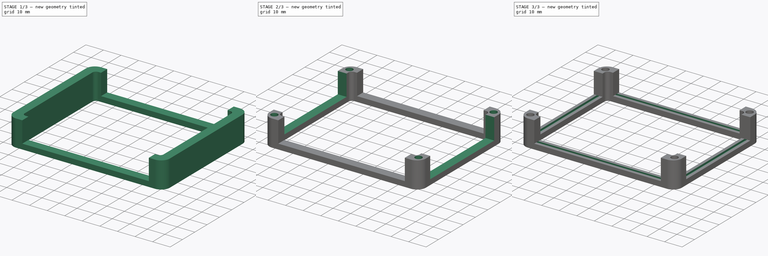
[diagram: build sequence overview — one tinted view per stage of 3, left to right]
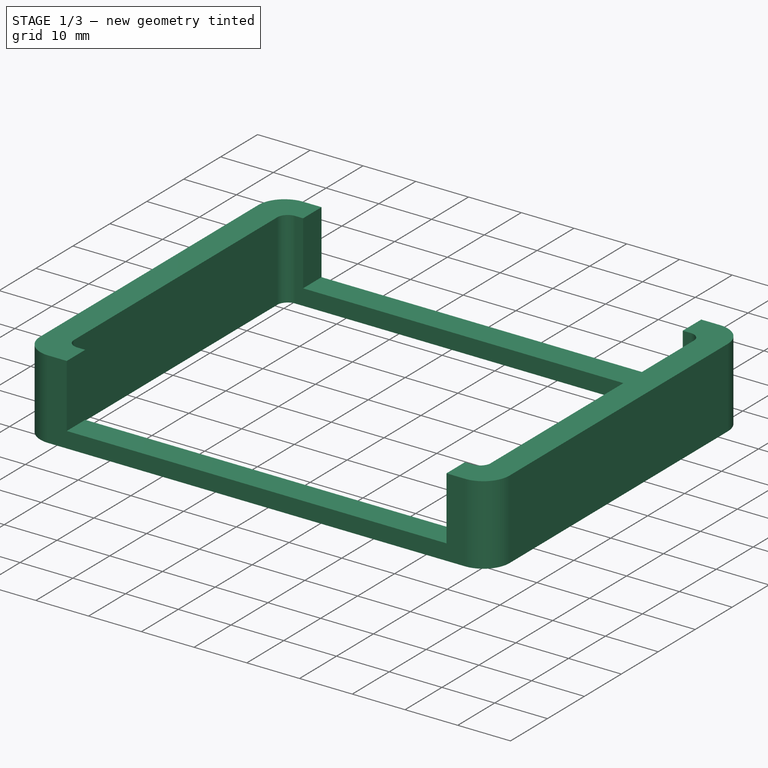
[diagram: stage 1 of 3 — iso view after this stage's code; geometry added in this stage tinted green]
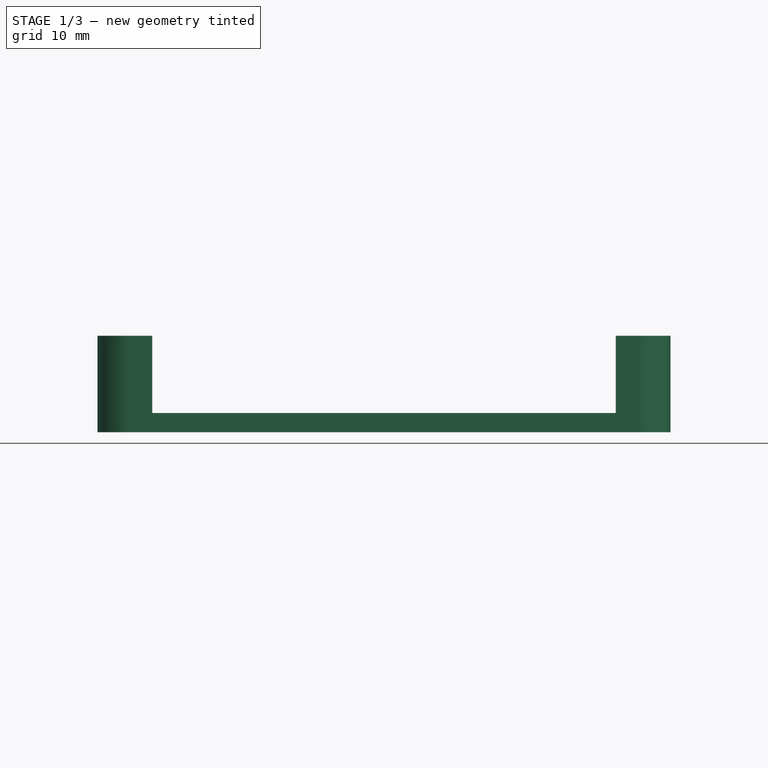
[diagram: stage 1 of 3 — front view after this stage's code; geometry added in this stage tinted green]
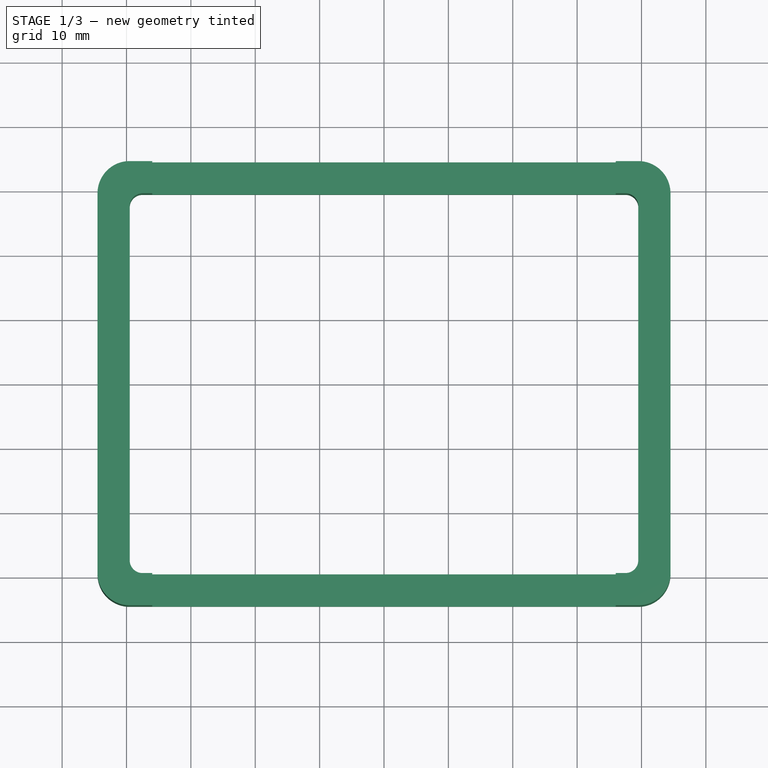
[diagram: stage 1 of 3 — top view after this stage's code; geometry added in this stage tinted green]
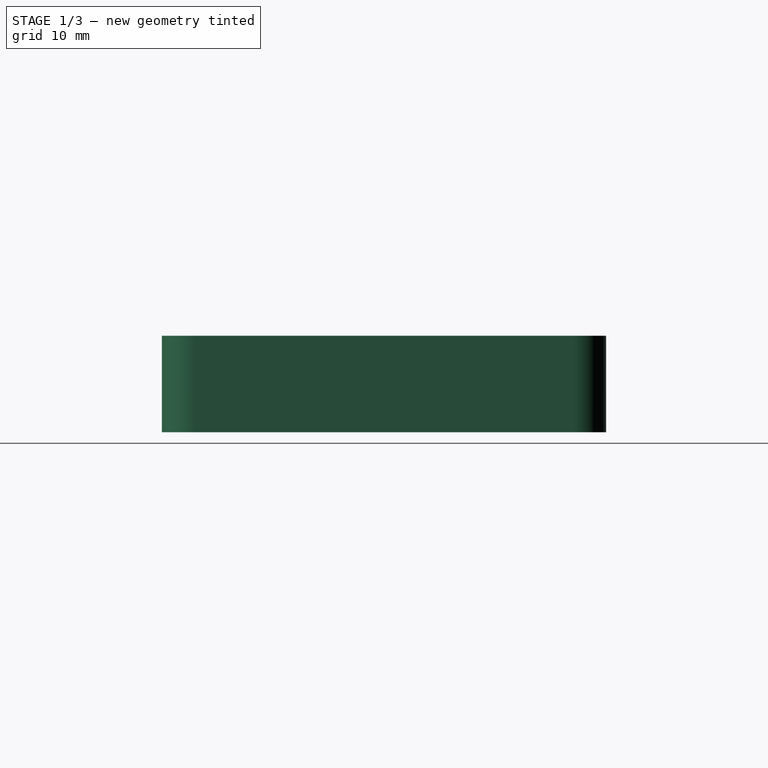
[diagram: stage 1 of 3 — right view after this stage's code; geometry added in this stage tinted green]
FCSTD DOCUMENT  (FreeCAD 0.16R)
Label: frame
License: All rights reserved
LicenseURL: http://en.wikipedia.org/wiki/All_rights_reserved
objects: Drawing::FeatureViewPython×13, Sketcher::SketchObject×6, PartDesign::Pocket×5, Drawing::FeatureViewPart×3, PartDesign::Pad×1, Drawing::FeaturePage×1, Part::Feature×1
note: 19 computed .brp shape members not serialized (recipe doc carries the construction recipe); baked Part::Feature solids carry a one-line shape summary decoded from their .brp

FEATURE [Sketcher::SketchObject] Sketch  label="Base"
  sketch-geometry (16):
    g0: LineSegment StartX=-37.5 StartY=29.5 StartZ=0 EndX=37.5 EndY=29.5 EndZ=0
    g1: LineSegment StartX=39.5 StartY=27.5 StartZ=0 EndX=39.5 EndY=-27.5 EndZ=0
    g2: LineSegment StartX=37.5 StartY=-29.5 StartZ=0 EndX=-37.5 EndY=-29.5 EndZ=0
    g3: LineSegment StartX=-39.5 StartY=-27.5 StartZ=0 EndX=-39.5 EndY=27.5 EndZ=0
    g4: LineSegment StartX=-39.5 StartY=34.5 StartZ=0 EndX=39.5 EndY=34.5 EndZ=0
    g5: LineSegment StartX=44.5 StartY=29.5 StartZ=0 EndX=44.5 EndY=-29.5 EndZ=0
    g6: LineSegment StartX=39.5 StartY=-34.5 StartZ=0 EndX=-39.5 EndY=-34.5 EndZ=0
    g7: LineSegment StartX=-44.5 StartY=-29.5 StartZ=0 EndX=-44.5 EndY=29.5 EndZ=0
    g8: ArcOfCircle CenterX=-37.5 CenterY=-27.5 CenterZ=0 NormalX=0 NormalY=0 NormalZ=1 Radius=2 StartAngle=3.14159 EndAngle=4.71239
    g9: ArcOfCircle CenterX=-39.5 CenterY=-29.5 CenterZ=0 NormalX=0 NormalY=0 NormalZ=1 Radius=5 StartAngle=3.14159 EndAngle=4.71239
    g10: ArcOfCircle CenterX=-39.5 CenterY=29.5 CenterZ=0 NormalX=0 NormalY=0 NormalZ=1 Radius=5 StartAngle=1.5708 EndAngle=3.14159
    g11: ArcOfCircle CenterX=-37.5 CenterY=27.5 CenterZ=0 NormalX=0 NormalY=0 NormalZ=1 Radius=2 StartAngle=1.5708 EndAngle=3.14159
    g12: ArcOfCircle CenterX=37.5 CenterY=27.5 CenterZ=0 NormalX=0 NormalY=0 NormalZ=1 Radius=2 StartAngle=0 EndAngle=1.5708
    g13: ArcOfCircle CenterX=39.5 CenterY=29.5 CenterZ=0 NormalX=0 NormalY=0 NormalZ=1 Radius=5 StartAngle=0 EndAngle=1.5708
    g14: ArcOfCircle CenterX=39.5 CenterY=-29.5 CenterZ=0 NormalX=0 NormalY=0 NormalZ=1 Radius=5 StartAngle=4.71239 EndAngle=6.28319
    g15: ArcOfCircle CenterX=37.5 CenterY=-27.5 CenterZ=0 NormalX=0 NormalY=0 NormalZ=1 Radius=2 StartAngle=4.71239 EndAngle=6.28319
  constraints (40):
    c: Horizontal(g0)
    c: Horizontal(g2)
    c: Vertical(g1)
    c: Vertical(g3)
    c: Horizontal(g4)
    c: Horizontal(g6)
    c: Vertical(g5)
    c: Vertical(g7)
    c: Tangent(g2,g8) = 1.5708
    c: Tangent(g3,g8) = 1.5708
    c: Tangent(g6,g9) = 1.5708
    c: Tangent(g7,g9) = 1.5708
    c: Tangent(g7,g10) = 1.5708
    c: Tangent(g4,g10) = 1.5708
    c: Tangent(g3,g11) = 1.5708
    c: Tangent(g0,g11) = 1.5708
    c: Tangent(g0,g12) = 1.5708
    c: Tangent(g1,g12) = 1.5708
    c: Tangent(g4,g13) = 1.5708
    c: Tangent(g5,g13) = 1.5708
    c: Tangent(g5,g14) = 1.5708
    c: Tangent(g6,g14) = 1.5708
    c: Tangent(g1,g15) = 1.5708
    c: Tangent(g2,g15) = 1.5708
    c: DistanceY(g6,g2) = 5
    c: DistanceX(g1,g5) = 5
    c: DistanceX(g7,g3) = 5
    c: DistanceY(g0,g4) = 5
    c: Radius(g11) = 2
    c: Equal(g11,g12)
    c: Equal(g11,g15)
    c: Equal(g11,g8)
    c: Radius(g9) = 5
    c: Equal(g9,g10)
    c: Equal(g9,g13)
    c: Equal(g9,g14)
    c: Symmetric(g11,g15,g-1)
    c: Symmetric(g8,g12,g-1)
    c: DistanceX(g0,g0) = 75
    c: DistanceY(g1,g1) = 55
FEATURE [PartDesign::Pad] Pad
  Length = 15
  Length2 = 100
  Sketch = -> Sketch
  Type = 0
FEATURE [Sketcher::SketchObject] Sketch001
  ExternalGeometry = -> [Pad]
  Placement = pos=(0,-34.5,0) rot=(1,0,0;1.5708rad)
  Support = -> Pad [Face7]
  sketch-geometry (4):
    g0: LineSegment StartX=-36 StartY=15 StartZ=0 EndX=36 EndY=15 EndZ=0
    g1: LineSegment StartX=36 StartY=15 StartZ=0 EndX=36 EndY=3 EndZ=0
    g2: LineSegment StartX=36 StartY=3 StartZ=0 EndX=-36 EndY=3 EndZ=0
    g3: LineSegment StartX=-36 StartY=3 StartZ=0 EndX=-36 EndY=15 EndZ=0
  constraints (12):
    c: Coincident(g0,g1)
    c: Coincident(g1,g2)
    c: Coincident(g2,g3)
    c: Coincident(g3,g0)
    c: Horizontal(g0)
    c: Horizontal(g2)
    c: Vertical(g1)
    c: Vertical(g3)
    c: PointOnObject(g0,g-5)
    c: DistanceY(g3,g3) = 12
    c: Distance(g0,g-5) = 3.5
    c: Distance(g0,g-5) = 3.5
FEATURE [PartDesign::Pocket] Pocket
  Length = 5
  Sketch = -> Sketch001
  Type = 1
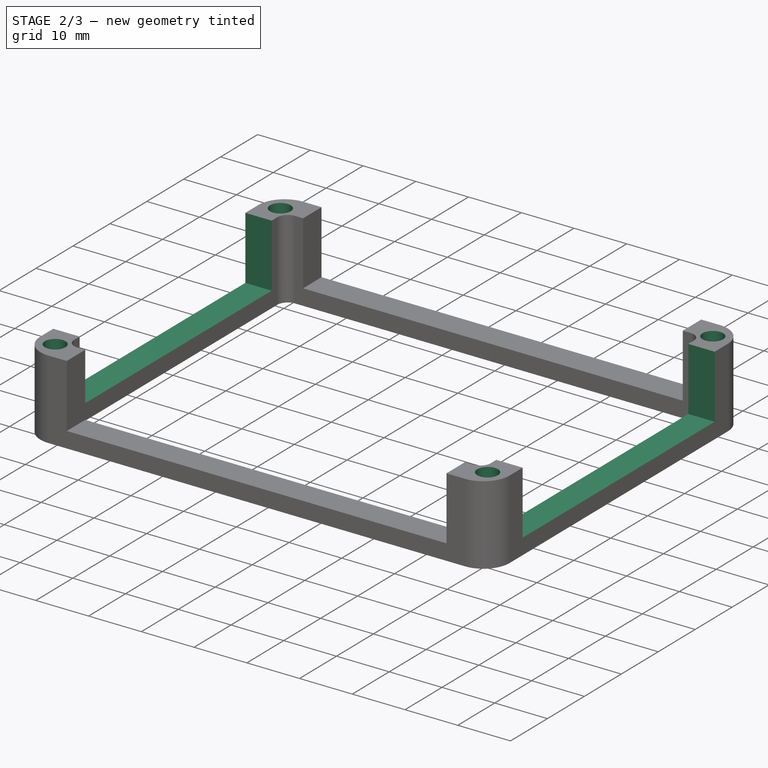
[diagram: stage 2 of 3 — iso view after this stage's code; geometry added in this stage tinted green]
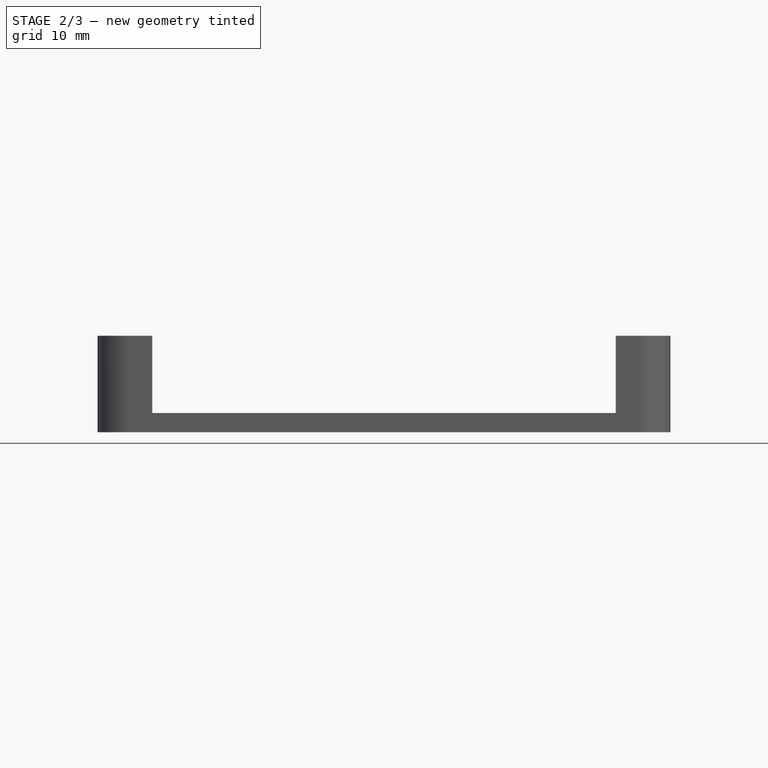
[diagram: stage 2 of 3 — front view after this stage's code; geometry added in this stage tinted green]
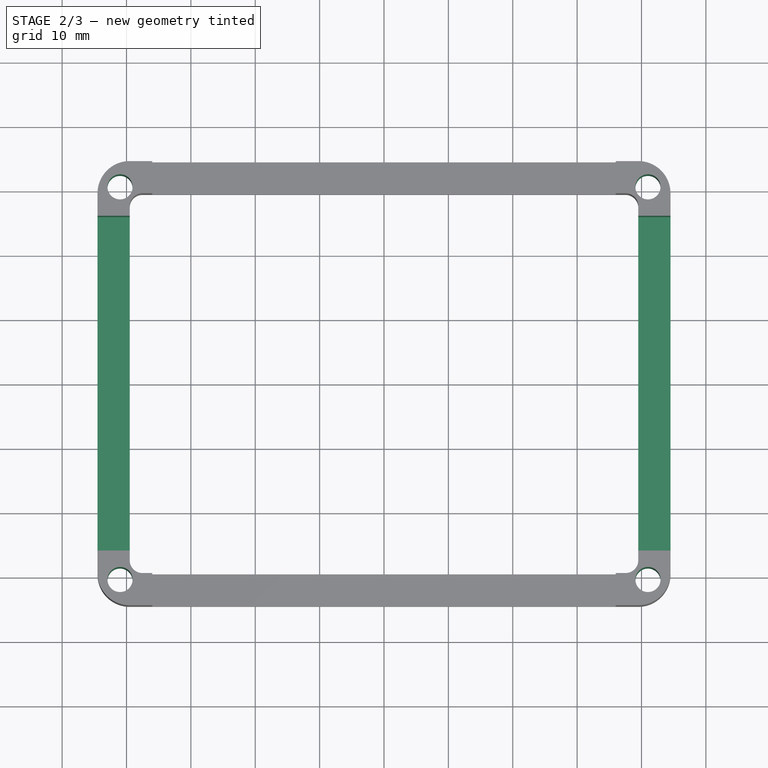
[diagram: stage 2 of 3 — top view after this stage's code; geometry added in this stage tinted green]
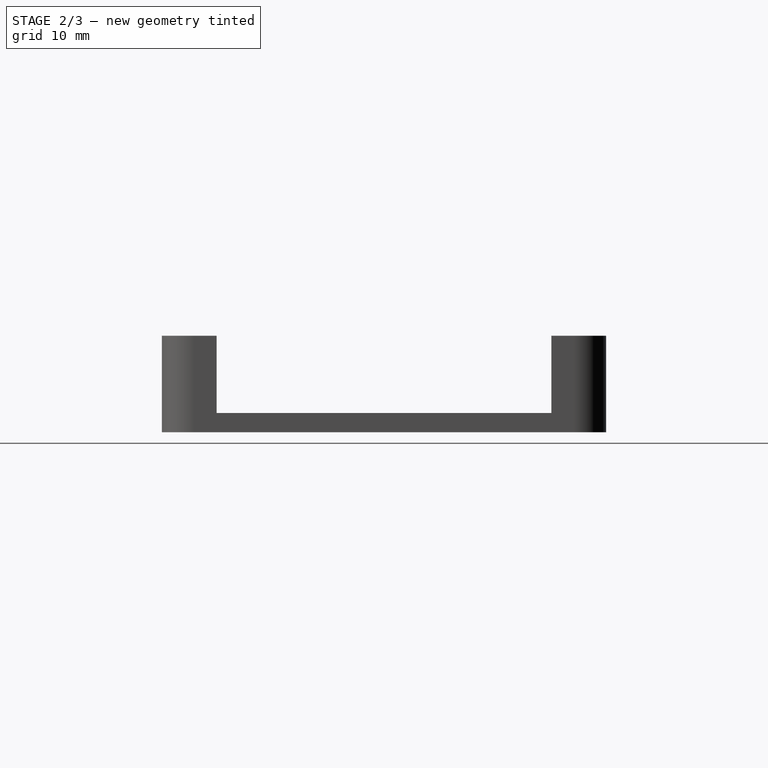
[diagram: stage 2 of 3 — right view after this stage's code; geometry added in this stage tinted green]
FEATURE [Sketcher::SketchObject] Sketch002
  ExternalGeometry = -> [Pocket]
  Placement = pos=(44.5,0,0) rot=(0.57735,0.57735,0.57735;2.0944rad)
  Support = -> Pocket [Face9]
  sketch-geometry (4):
    g0: LineSegment StartX=-26 StartY=15 StartZ=0 EndX=26 EndY=15 EndZ=0
    g1: LineSegment StartX=26 StartY=15 StartZ=0 EndX=26 EndY=3 EndZ=0
    g2: LineSegment StartX=26 StartY=3 StartZ=0 EndX=-26 EndY=3 EndZ=0
    g3: LineSegment StartX=-26 StartY=3 StartZ=0 EndX=-26 EndY=15 EndZ=0
  constraints (12):
    c: Coincident(g0,g1)
    c: Coincident(g1,g2)
    c: Coincident(g2,g3)
    c: Coincident(g3,g0)
    c: Horizontal(g0)
    c: Horizontal(g2)
    c: Vertical(g1)
    c: Vertical(g3)
    c: PointOnObject(g0,g-5)
    c: DistanceY(g1,g1) = 12
    c: DistanceX(g-5,g0) = 3.5
    c: DistanceX(g0,g-5) = 3.5
FEATURE [PartDesign::Pocket] Pocket001
  Length = 5
  Sketch = -> Sketch002
  Type = 1
FEATURE [Sketcher::SketchObject] Sketch003  label="Drills"
  Placement = pos=(0,0,15) rot=(0,0,1;0rad)
  Support = -> Pocket001 [Face4]
  sketch-geometry (4):
    g0: Circle CenterX=-41 CenterY=30.5 CenterZ=0 NormalX=0 NormalY=0 NormalZ=1 Radius=1.95
    g1: Circle CenterX=41 CenterY=30.5 CenterZ=0 NormalX=0 NormalY=0 NormalZ=1 Radius=1.95
    g2: Circle CenterX=-41 CenterY=-30.5 CenterZ=0 NormalX=0 NormalY=0 NormalZ=1 Radius=1.95
    g3: Circle CenterX=41 CenterY=-30.5 CenterZ=0 NormalX=0 NormalY=0 NormalZ=1 Radius=1.95
  constraints (10):
    c: Radius(g0) = 1.95
    c: Radius(g1) = 1.95
    c: Radius(g3) = 1.95
    c: Radius(g2) = 1.95
    c: Symmetric(g2,g1,g-1)
    c: Symmetric(g3,g0,g-1)
    c: Symmetric(g0,g1,g-2)
    c: Symmetric(g2,g3,g-2)
    c: Distance(g1,g0) = 82
    c: Distance(g3,g1) = 61
FEATURE [PartDesign::Pocket] Pocket002
  Length = 15
  Sketch = -> Sketch003
  Type = 0
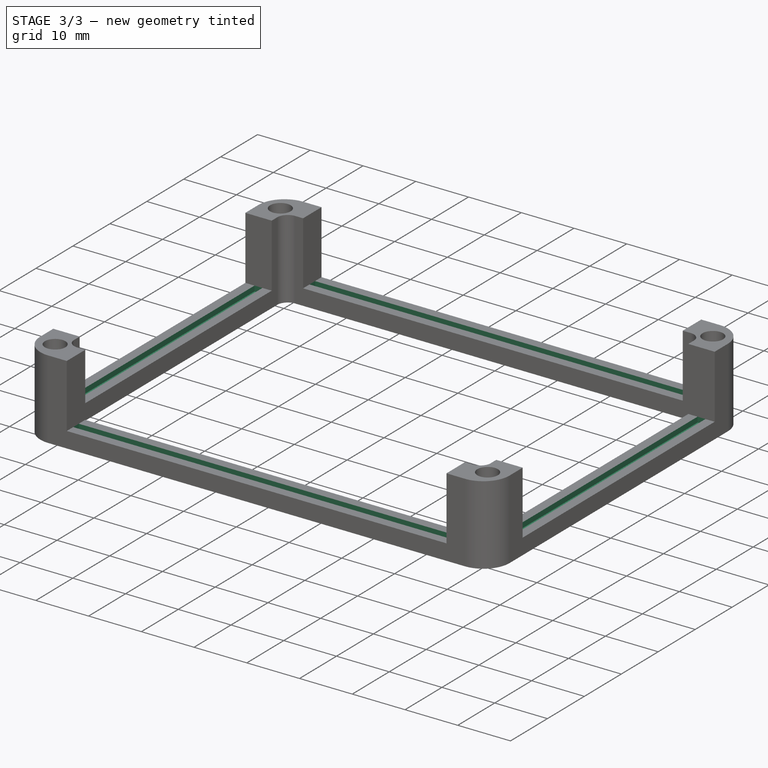
[diagram: stage 3 of 3 — iso view after this stage's code; geometry added in this stage tinted green]
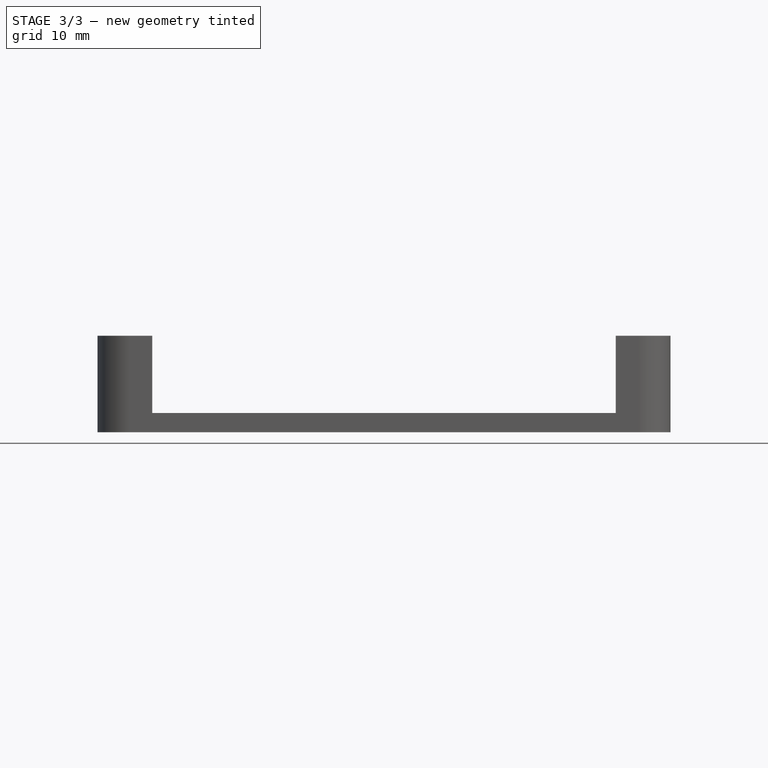
[diagram: stage 3 of 3 — front view after this stage's code; geometry added in this stage tinted green]
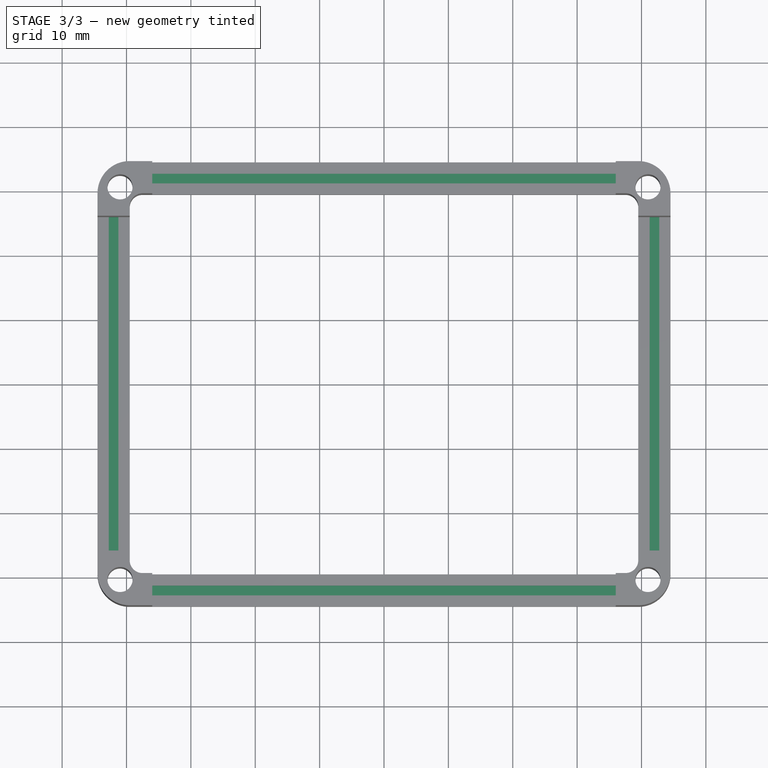
[diagram: stage 3 of 3 — top view after this stage's code; geometry added in this stage tinted green]
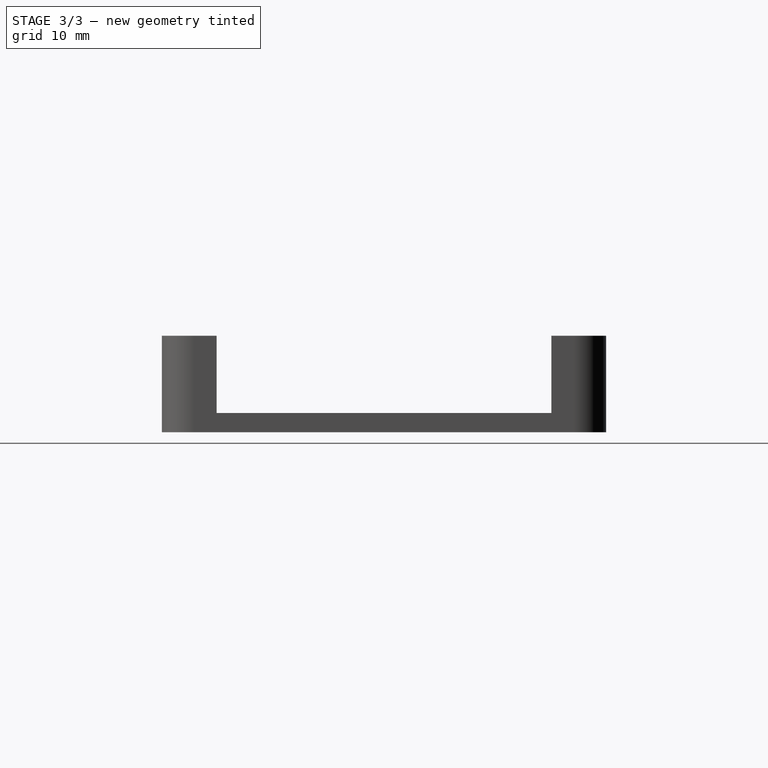
[diagram: stage 3 of 3 — right view after this stage's code; geometry added in this stage tinted green]
FEATURE [Sketcher::SketchObject] Sketch004  label="Grooves"
  ExternalGeometry = -> [Pocket002]
  Placement = pos=(0,0,3) rot=(0,0,1;0rad)
  Support = -> Pocket002 [Face34]
  sketch-geometry (16):
    g0: LineSegment StartX=-36 StartY=32.75 StartZ=0 EndX=36 EndY=32.75 EndZ=0
    g1: LineSegment StartX=36 StartY=32.75 StartZ=0 EndX=36 EndY=31.25 EndZ=0
    g2: LineSegment StartX=36 StartY=31.25 StartZ=0 EndX=-36 EndY=31.25 EndZ=0
    g3: LineSegment StartX=-36 StartY=31.25 StartZ=0 EndX=-36 EndY=32.75 EndZ=0
    g4: LineSegment StartX=41.25 StartY=26 StartZ=0 EndX=42.75 EndY=26 EndZ=0
    g5: LineSegment StartX=42.75 StartY=26 StartZ=0 EndX=42.75 EndY=-26 EndZ=0
    g6: LineSegment StartX=42.75 StartY=-26 StartZ=0 EndX=41.25 EndY=-26 EndZ=0
    g7: LineSegment StartX=41.25 StartY=-26 StartZ=0 EndX=41.25 EndY=26 EndZ=0
    g8: LineSegment StartX=-36 StartY=-31.25 StartZ=0 EndX=36 EndY=-31.25 EndZ=0
    g9: LineSegment StartX=36 StartY=-31.25 StartZ=0 EndX=36 EndY=-32.75 EndZ=0
    g10: LineSegment StartX=36 StartY=-32.75 StartZ=0 EndX=-36 EndY=-32.75 EndZ=0
    g11: LineSegment StartX=-36 StartY=-32.75 StartZ=0 EndX=-36 EndY=-31.25 EndZ=0
    g12: LineSegment StartX=-42.75 StartY=26 StartZ=0 EndX=-41.25 EndY=26 EndZ=0
    g13: LineSegment StartX=-41.25 StartY=26 StartZ=0 EndX=-41.25 EndY=-26 EndZ=0
    g14: LineSegment StartX=-41.25 StartY=-26 StartZ=0 EndX=-42.75 EndY=-26 EndZ=0
    g15: LineSegment StartX=-42.75 StartY=-26 StartZ=0 EndX=-42.75 EndY=26 EndZ=0
  constraints (48):
    c: Coincident(g0,g1)
    c: Coincident(g1,g2)
    c: Coincident(g2,g3)
    c: Coincident(g3,g0)
    c: Horizontal(g0)
    c: Horizontal(g2)
    c: Vertical(g1)
    c: Vertical(g3)
    c: PointOnObject(g0,g-4)
    c: DistanceY(g1,g0) = 1.5
    c: PointOnObject(g2,g-3)
    c: DistanceY(g0,g-5) = 1.75
    c: Coincident(g4,g5)
    c: Coincident(g5,g6)
    c: Coincident(g6,g7)
    c: Coincident(g7,g4)
    c: Horizontal(g4)
    c: Horizontal(g6)
    c: Vertical(g5)
    c: Vertical(g7)
    c: PointOnObject(g4,g-7)
    c: PointOnObject(g5,g-9)
    c: DistanceX(g5,g-9) = 1.75
    c: DistanceX(g6,g5) = 1.5
    c: Coincident(g8,g9)
    c: Coincident(g9,g10)
    c: Coincident(g10,g11)
    c: Coincident(g11,g8)
    c: Horizontal(g8)
    c: Horizontal(g10)
    c: Vertical(g9)
    c: Vertical(g11)
    c: PointOnObject(g9,g-10)
    c: PointOnObject(g10,g-12)
    c: DistanceY(g10,g8) = 1.5
    c: DistanceY(g-12,g10) = 1.75
    c: Coincident(g12,g13)
    c: Coincident(g13,g14)
    c: Coincident(g14,g15)
    c: Coincident(g15,g12)
    c: Horizontal(g12)
    c: Horizontal(g14)
    c: Vertical(g13)
    c: Vertical(g15)
    c: PointOnObject(g13,g-15)
    c: PointOnObject(g12,g-13)
    c: DistanceX(g-14,g12) = 1.75
    c: DistanceX(g12,g12) = 1.5
FEATURE [PartDesign::Pocket] Pocket003
  Length = 1
  Sketch = -> Sketch004
  Type = 0
FEATURE [Sketcher::SketchObject] Sketch005
  ExternalGeometry = -> [Pocket003]
  Placement = pos=(0,0,0) rot=(1,0,0;3.14159rad)
  Support = -> Pocket003 [Face2]
  sketch-geometry (16):
    g0: LineSegment StartX=-36 StartY=32.75 StartZ=0 EndX=36 EndY=32.75 EndZ=0
    g1: LineSegment StartX=36 StartY=32.75 StartZ=0 EndX=36 EndY=31.25 EndZ=0
    g2: LineSegment StartX=36 StartY=31.25 StartZ=0 EndX=-36 EndY=31.25 EndZ=0
    g3: LineSegment StartX=-36 StartY=31.25 StartZ=0 EndX=-36 EndY=32.75 EndZ=0
    g4: LineSegment StartX=-36 StartY=-31.25 StartZ=0 EndX=36 EndY=-31.25 EndZ=0
    g5: LineSegment StartX=36 StartY=-31.25 StartZ=0 EndX=36 EndY=-32.75 EndZ=0
    g6: LineSegment StartX=36 StartY=-32.75 StartZ=0 EndX=-36 EndY=-32.75 EndZ=0
    g7: LineSegment StartX=-36 StartY=-32.75 StartZ=0 EndX=-36 EndY=-31.25 EndZ=0
    g8: LineSegment StartX=41.25 StartY=26 StartZ=0 EndX=42.75 EndY=26 EndZ=0
    g9: LineSegment StartX=42.75 StartY=26 StartZ=0 EndX=42.75 EndY=-26 EndZ=0
    g10: LineSegment StartX=42.75 StartY=-26 StartZ=0 EndX=41.25 EndY=-26 EndZ=0
    g11: LineSegment StartX=41.25 StartY=-26 StartZ=0 EndX=41.25 EndY=26 EndZ=0
    g12: LineSegment StartX=-42.75 StartY=26 StartZ=0 EndX=-41.25 EndY=26 EndZ=0
    g13: LineSegment StartX=-41.25 StartY=26 StartZ=0 EndX=-41.25 EndY=-26 EndZ=0
    g14: LineSegment StartX=-41.25 StartY=-26 StartZ=0 EndX=-42.75 EndY=-26 EndZ=0
    g15: LineSegment StartX=-42.75 StartY=-26 StartZ=0 EndX=-42.75 EndY=26 EndZ=0
  constraints (48):
    c: Coincident(g0,g1)
    c: Coincident(g1,g2)
    c: Coincident(g2,g3)
    c: Coincident(g3,g0)
    c: Horizontal(g0)
    c: Horizontal(g2)
    c: Vertical(g1)
    c: Vertical(g3)
    c: Distance(g0,g-4) = 1.75
    c: DistanceY(g2,g0) = 1.5
    c: DistanceX(g2,g1) = 72
    c: Symmetric(g2,g1,g-2)
    c: Coincident(g4,g5)
    c: Coincident(g5,g6)
    c: Coincident(g6,g7)
    c: Coincident(g7,g4)
    c: Horizontal(g4)
    c: Horizontal(g6)
    c: Vertical(g5)
    c: Vertical(g7)
    c: DistanceY(g-5,g6) = 1.75
    c: DistanceY(g6,g4) = 1.5
    c: DistanceX(g6,g6) = 72
    c: Symmetric(g4,g4,g-2)
    c: Coincident(g8,g9)
    c: Coincident(g9,g10)
    c: Coincident(g10,g11)
    c: Coincident(g11,g8)
    c: Horizontal(g8)
    c: Horizontal(g10)
    c: Vertical(g9)
    c: Vertical(g11)
    c: Coincident(g12,g13)
    c: Coincident(g13,g14)
    c: Coincident(g14,g15)
    c: Coincident(g15,g12)
    c: Horizontal(g12)
    c: Horizontal(g14)
    c: Vertical(g13)
    c: Vertical(g15)
    c: DistanceX(g8,g-6) = 1.75
    c: DistanceX(g8,g8) = 1.5
    c: DistanceY(g9,g9) = 52
    c: Symmetric(g9,g8,g-1)
    c: DistanceX(g-7,g12) = 1.75
    c: DistanceX(g12,g12) = 1.5
    c: DistanceY(g13,g12) = 52
    c: Symmetric(g12,g13,g-1)
FEATURE [PartDesign::Pocket] Pocket004
  Length = 1
  Sketch = -> Sketch005
  Type = 0
FEATURE [Drawing::FeatureViewPart] View  label="Top"
  Direction = (0,0,1)
  HiddenWidth = 0.15
  LineWidth = 0.35
  Rotation = 270
  ShowHiddenLines = false
  ShowSmoothLines = false
  Source = -> Pocket004
  Tolerance = 0.05
  ViewResult = <blob: 2699 chars omitted>
  Visible = true
  X = 80
  Y = 100
FEATURE [Drawing::FeatureViewPart] View001  label="Back"
  Direction = (1,0,0)
  HiddenWidth = 0.15
  LineWidth = 0.35
  Rotation = 270
  ShowHiddenLines = false
  ShowSmoothLines = false
  Source = -> Pocket004
  Tolerance = 0.05
  ViewResult = <g id="Back"\n   transform="rotate(270,200,70) translate(200,70) scale(1,1)"\n  >\n<g   stroke="rgb(0, 0, 0)"\n   stroke-width="0.35"\n   stroke-linecap="butt"\n   stroke-linejoin="miter"\n   fill="none"\n   transform="scale(1,-1)"\n  >\n<path d="M0,34.5 L0,34.4686  L0,34.3746  L0,34.2194  L0,34.0048  L0,33.7336  L0,33.4092  L0,33.0355  L0,32.6174  L0,32.1602  L0,31.6694  L0,31.1514  L0,30.6126  L0,30.0598  L0,29.5 " /><path d="M0,-29.5 L0,-30.0598  L0,-30.6126  L0,-31.1514  L0,-31.6694  L0,-32.1602  L0,-32.6174  L0,-33.0355  L0,-33.4092  L0,-33.7336  L0,-34.0048  L0,-34.2194  L0,-34.3746  L0,-34.4686  L0,-34.5 " /><path id= "3" d=" M 0 -29.5 L 0 29.5 " />\n<path id= "4" d=" M 3 -26 L 15 -26 " />\n<path id= "5" d=" M 15 26 L 3 26 " />\n<path id= "6" d=" M 0 34.5 L 15 34.5 " />\n<path id= "7" d=" M 0 -34.5 L 15 -34.5 " />\n<path d="M15,34.5 L15,34.4686  L15,34.3746  L15,34.2194  L15,34.0048  L15,33.7336  L15,33.4092  L15,33.0355  L15,32.6174  L15,32.1602  L15,31.6694  L15,31.1514  L15,30.6126  L15,30.0598  L15,29.5 " /><path d="M15,-29.5 L15,-30.0598  L15,-30.6126  L15,-31.1514  L15,-31.6694  L15,-32.1602  L15,-32.6174  L15,-33.0355  L15,-33.4092  L15,-33.7336  L15,-34.0048  L15,-34.2194  L15,-34.3746  L15,-34.4686  L15,-34.5 " /><path id= "10" d=" M 15 26 L 15 29.5 " />\n<path id= "11" d=" M 3 26 L 15 26 " />\n<path id= "12" d=" M 3 -26 L 3 26 " />\n<path id= "13" d=" M 15 -26 L 3 -26 " />\n<path id= "14" d=" M 15 -29.5 L 15 -26 " />\n<path id= "15" d=" M 3 26 L 3 -26 " />\n</g>\n</g>
  Visible = true
  X = 200
  Y = 70
FEATURE [Drawing::FeatureViewPart] View002  label="Front"
  Direction = (0,1,0)
  HiddenWidth = 0.15
  LineWidth = 0.35
  Rotation = 270
  ShowHiddenLines = false
  ShowSmoothLines = false
  Source = -> Pocket004
  Tolerance = 0.05
  ViewResult = <blob: 2136 chars omitted>
  Visible = true
  X = 200
  Y = 120
FEATURE [Drawing::FeatureViewPython] dim001  # drawing view (typed FeaturePython)
  Rotation = 0
  ViewResult = <g> \n  <line x1="49.500000" y1="143.000000" x2="49.500000" y2="154.301087" style="stroke:rgb(0,0,255);stroke-width:0.50" />\n<line x1="110.500000" y1="143.000000" x2="110.500000" y2="154.301087" style="stroke:rgb(0,0,255);stroke-width:0.50" />\n<line x1="49.500000" y1="153.301087" x2="110.500000" y2="153.301087" style="stroke:rgb(0,0,255);stroke-width:0.50" /> \n  <polygon points="110.500000,153.301087 107.500000,152.301087 106.500000,153.301087 107.500000,154.301087" style="fill:rgb(0,0,255);stroke:rgb(0,0,255);stroke-width:0" /><polygon points="49.500000,153.301087 52.500000,154.301087 53.500000,153.301087 52.500000,152.301087" style="fill:rgb(0,0,255);stroke:rgb(0,0,255);stroke-width:0" /> \n  <text x="80.000000" y="151.301087" font-family="inherit" font-size="3.6" fill="rgb(0,0,255)" text-anchor="middle" transform="rotate(0.000000 80.000000,151.301087)" >61</text> </g>
  Visible = true
  X = 0
  Y = 0
  arrowL1 = 3
  arrowL2 = 1
  arrowW = 2
  arrow_scheme = 0
  autoPlaceOffset = 2
  autoPlaceText = true
  click1_x = 107.4
  click1_y = 153.301
  click2_x = 107.4
  click2_y = 153.301
  comma_decimal_place = false
  dimension_line_overshoot = 1
  gap_datum_points = 2
  halfDimension_linear = false
  lineColor = rgb(0,0,255)
  strokeWidth = 0.5
  textFormat_linear = %(value)3.3f
  textRenderer_color = rgb(0,0,255)
  textRenderer_family = inherit
  textRenderer_size = 3.6
  unit_custom_scale = 1
  unit_scheme = 0
FEATURE [Drawing::FeatureViewPython] rad001  # drawing view (typed FeaturePython)
  Rotation = 0
  ViewResult = <g>  <circle cx ="49.500000" cy ="141.000000" r="0.250000" stroke="none" fill="rgb(0,0,255)" /> \n<line x1="55.848136" y1="133.022895" x2="49.500000" y2="141.000000" style="stroke:rgb(0,0,255);stroke-width:0.50" />\n<polygon points="50.714239,139.474181 53.364769,137.749453 53.204984,136.344295 51.799826,136.504080" style="fill:rgb(0,0,255);stroke:rgb(0,0,255);stroke-width:0" />\n<line x1="55.848136" y1="133.022895" x2="62.905867" y2="133.022895" style="stroke:rgb(0,0,255);stroke-width:0.50" />\n<text x="59.377001" y="131.022895" font-family="inherit" font-size="3.6" fill="rgb(0,0,255)" text-anchor="middle" transform="rotate(0.000000 59.377001,131.022895)" >R1.95</text> </g>
  Visible = true
  X = 0
  Y = 0
  arrowL1 = 3
  arrowL2 = 1
  arrowW = 2
  arrow_scheme = 0
  autoPlaceOffset = 2
  autoPlaceText = true
  centerPointDia = 0.5
  click1_x = 55.8481
  click1_y = 133.023
  click2_x = 62.9059
  click2_y = 132.256
  click3_x = 62.9059
  click3_y = 132.256
  comma_decimal_place = false
  lineColor = rgb(0,0,255)
  strokeWidth = 0.5
  textFormat_radial = R%(value)3.3f
  textRenderer_color = rgb(0,0,255)
  textRenderer_family = inherit
  textRenderer_size = 3.6
  unit_custom_scale = 1
  unit_scheme = 0
FEATURE [Drawing::FeatureViewPython] rad002  # drawing view (typed FeaturePython)
  Rotation = 0
  ViewResult = <g>  <circle cx ="109.500000" cy ="139.500000" r="0.250000" stroke="none" fill="rgb(0,0,255)" /> \n<line x1="118.140287" y1="146.984929" x2="109.500000" y2="139.500000" style="stroke:rgb(0,0,255);stroke-width:0.50" />\n<polygon points="113.279164,142.773823 111.666430,140.053697 110.255833,140.154765 110.356901,141.565362" style="fill:rgb(0,0,255);stroke:rgb(0,0,255);stroke-width:0" />\n<line x1="118.140287" y1="146.984929" x2="126.732308" y2="146.984929" style="stroke:rgb(0,0,255);stroke-width:0.50" />\n<text x="122.436298" y="144.984929" font-family="inherit" font-size="3.6" fill="rgb(0,0,255)" text-anchor="middle" transform="rotate(0.000000 122.436298,144.984929)" >R5</text> </g>
  Visible = true
  X = 0
  Y = 0
  arrowL1 = 3
  arrowL2 = 1
  arrowW = 2
  arrow_scheme = 0
  autoPlaceOffset = 2
  autoPlaceText = true
  centerPointDia = 0.5
  click1_x = 118.14
  click1_y = 146.985
  click2_x = 126.732
  click2_y = 147.445
  click3_x = 126.732
  click3_y = 147.445
  comma_decimal_place = false
  lineColor = rgb(0,0,255)
  strokeWidth = 0.5
  textFormat_radial = R%(value)3.3f
  textRenderer_color = rgb(0,0,255)
  textRenderer_family = inherit
  textRenderer_size = 3.6
  unit_custom_scale = 1
  unit_scheme = 0
FEATURE [Drawing::FeatureViewPython] rad003  # drawing view (typed FeaturePython)
  Rotation = 0
  ViewResult = <g>  <circle cx ="107.500000" cy ="137.500000" r="0.250000" stroke="none" fill="rgb(0,0,255)" /> \n<line x1="99.575385" y1="129.954316" x2="107.500000" y2="137.500000" style="stroke:rgb(0,0,255);stroke-width:0.50" />\n<polygon points="106.051581,136.120840 104.568532,133.327890 103.154743,133.362520 103.189372,134.776309" style="fill:rgb(0,0,255);stroke:rgb(0,0,255);stroke-width:0" />\n<line x1="99.575385" y1="129.954316" x2="94.819088" y2="129.954316" style="stroke:rgb(0,0,255);stroke-width:0.50" />\n<text x="97.197236" y="127.954316" font-family="inherit" font-size="3.6" fill="rgb(0,0,255)" text-anchor="middle" transform="rotate(0.000000 97.197236,127.954316)" >R2</text> </g>
  Visible = true
  X = 0
  Y = 0
  arrowL1 = 3
  arrowL2 = 1
  arrowW = 2
  arrow_scheme = 0
  autoPlaceOffset = 2
  autoPlaceText = true
  centerPointDia = 0.5
  click1_x = 99.5754
  click1_y = 129.954
  click2_x = 94.8191
  click2_y = 129.647
  click3_x = 94.8191
  click3_y = 129.647
  comma_decimal_place = false
  lineColor = rgb(0,0,255)
  strokeWidth = 0.5
  textFormat_radial = R%(value)3.3f
  textRenderer_color = rgb(0,0,255)
  textRenderer_family = inherit
  textRenderer_size = 3.6
  unit_custom_scale = 1
  unit_scheme = 0
FEATURE [Drawing::FeatureViewPython] dim002  # drawing view (typed FeaturePython)
  Rotation = 0
  ViewResult = <g> \n  <line x1="43.500000" y1="136.000000" x2="36.748343" y2="136.000000" style="stroke:rgb(0,0,255);stroke-width:0.50" />\n<line x1="43.500000" y1="64.000000" x2="36.748343" y2="64.000000" style="stroke:rgb(0,0,255);stroke-width:0.50" />\n<line x1="37.748343" y1="136.000000" x2="37.748343" y2="64.000000" style="stroke:rgb(0,0,255);stroke-width:0.50" /> \n  <polygon points="37.748343,64.000000 36.748343,67.000000 37.748343,68.000000 38.748343,67.000000" style="fill:rgb(0,0,255);stroke:rgb(0,0,255);stroke-width:0" /><polygon points="37.748343,136.000000 38.748343,133.000000 37.748343,132.000000 36.748343,133.000000" style="fill:rgb(0,0,255);stroke:rgb(0,0,255);stroke-width:0" /> \n  <text x="35.748343" y="100.000000" font-family="inherit" font-size="3.6" fill="rgb(0,0,255)" text-anchor="middle" transform="rotate(-90.000000 35.748343,100.000000)" >72</text> </g>
  Visible = true
  X = 0
  Y = 0
  arrowL1 = 3
  arrowL2 = 1
  arrowW = 2
  arrow_scheme = 0
  autoPlaceOffset = 2
  autoPlaceText = true
  click1_x = 37.7483
  click1_y = 86.9527
  click2_x = 37.7483
  click2_y = 86.9527
  comma_decimal_place = false
  dimension_line_overshoot = 1
  gap_datum_points = 2
  halfDimension_linear = false
  lineColor = rgb(0,0,255)
  strokeWidth = 0.5
  textFormat_linear = %(value)3.3f
  textRenderer_color = rgb(0,0,255)
  textRenderer_family = inherit
  textRenderer_size = 3.6
  unit_custom_scale = 1
  unit_scheme = 0
FEATURE [Drawing::FeatureViewPython] dim003  # drawing view (typed FeaturePython)
  Rotation = 0
  ViewResult = <g> \n  <line x1="174.000000" y1="65.000000" x2="174.000000" y2="39.753186" style="stroke:rgb(0,0,255);stroke-width:0.50" />\n<line x1="226.000000" y1="65.000000" x2="226.000000" y2="39.753186" style="stroke:rgb(0,0,255);stroke-width:0.50" />\n<line x1="174.000000" y1="40.753186" x2="226.000000" y2="40.753186" style="stroke:rgb(0,0,255);stroke-width:0.50" /> \n  <polygon points="226.000000,40.753186 223.000000,39.753186 222.000000,40.753186 223.000000,41.753186" style="fill:rgb(0,0,255);stroke:rgb(0,0,255);stroke-width:0" /><polygon points="174.000000,40.753186 177.000000,41.753186 178.000000,40.753186 177.000000,39.753186" style="fill:rgb(0,0,255);stroke:rgb(0,0,255);stroke-width:0" /> \n  <text x="200.000000" y="38.753186" font-family="inherit" font-size="3.6" fill="rgb(0,0,255)" text-anchor="middle" transform="rotate(0.000000 200.000000,38.753186)" >52</text> </g>
  Visible = true
  X = 0
  Y = 0
  arrowL1 = 3
  arrowL2 = 1
  arrowW = 2
  arrow_scheme = 0
  autoPlaceOffset = 2
  autoPlaceText = true
  click1_x = 186.3
  click1_y = 40.7532
  click2_x = 186.3
  click2_y = 40.7532
  comma_decimal_place = false
  dimension_line_overshoot = 1
  gap_datum_points = 2
  halfDimension_linear = false
  lineColor = rgb(0,0,255)
  strokeWidth = 0.5
  textFormat_linear = %(value)3.3f
  textRenderer_color = rgb(0,0,255)
  textRenderer_family = inherit
  textRenderer_size = 3.6
  unit_custom_scale = 1
  unit_scheme = 0
FEATURE [Drawing::FeatureViewPython] dim004  # drawing view (typed FeaturePython)
  Rotation = 0
  ViewResult = <g> \n  <line x1="164.000000" y1="115.000000" x2="164.000000" y2="88.957494" style="stroke:rgb(0,0,255);stroke-width:0.50" />\n<line x1="236.000000" y1="115.000000" x2="236.000000" y2="88.957494" style="stroke:rgb(0,0,255);stroke-width:0.50" />\n<line x1="164.000000" y1="89.957494" x2="236.000000" y2="89.957494" style="stroke:rgb(0,0,255);stroke-width:0.50" /> \n  <polygon points="236.000000,89.957494 233.000000,88.957494 232.000000,89.957494 233.000000,90.957494" style="fill:rgb(0,0,255);stroke:rgb(0,0,255);stroke-width:0" /><polygon points="164.000000,89.957494 167.000000,90.957494 168.000000,89.957494 167.000000,88.957494" style="fill:rgb(0,0,255);stroke:rgb(0,0,255);stroke-width:0" /> \n  <text x="200.000000" y="87.957494" font-family="inherit" font-size="3.6" fill="rgb(0,0,255)" text-anchor="middle" transform="rotate(0.000000 200.000000,87.957494)" >72</text> </g>
  Visible = true
  X = 0
  Y = 0
  arrowL1 = 3
  arrowL2 = 1
  arrowW = 2
  arrow_scheme = 0
  autoPlaceOffset = 2
  autoPlaceText = true
  click1_x = 189.869
  click1_y = 89.9575
  click2_x = 189.869
  click2_y = 89.9575
  comma_decimal_place = false
  dimension_line_overshoot = 1
  gap_datum_points = 2
  halfDimension_linear = false
  lineColor = rgb(0,0,255)
  strokeWidth = 0.5
  textFormat_linear = %(value)3.3f
  textRenderer_color = rgb(0,0,255)
  textRenderer_family = inherit
  textRenderer_size = 3.6
  unit_custom_scale = 1
  unit_scheme = 0
FEATURE [Drawing::FeatureViewPython] dim005  # drawing view (typed FeaturePython)
  Rotation = 0
  ViewResult = <g> \n  <line x1="153.500000" y1="120.000000" x2="146.988529" y2="120.000000" style="stroke:rgb(0,0,255);stroke-width:0.50" />\n<line x1="153.500000" y1="105.000000" x2="146.988529" y2="105.000000" style="stroke:rgb(0,0,255);stroke-width:0.50" />\n<line x1="147.988529" y1="120.000000" x2="147.988529" y2="105.000000" style="stroke:rgb(0,0,255);stroke-width:0.50" /> \n  <polygon points="147.988529,105.000000 146.988529,108.000000 147.988529,109.000000 148.988529,108.000000" style="fill:rgb(0,0,255);stroke:rgb(0,0,255);stroke-width:0" /><polygon points="147.988529,120.000000 148.988529,117.000000 147.988529,116.000000 146.988529,117.000000" style="fill:rgb(0,0,255);stroke:rgb(0,0,255);stroke-width:0" /> \n  <text x="145.988529" y="112.500000" font-family="inherit" font-size="3.6" fill="rgb(0,0,255)" text-anchor="middle" transform="rotate(-90.000000 145.988529,112.500000)" >15</text> </g>
  Visible = true
  X = 0
  Y = 0
  arrowL1 = 3
  arrowL2 = 1
  arrowW = 2
  arrow_scheme = 0
  autoPlaceOffset = 2
  autoPlaceText = true
  click1_x = 147.989
  click1_y = 116.062
  click2_x = 147.989
  click2_y = 116.062
  comma_decimal_place = false
  dimension_line_overshoot = 1
  gap_datum_points = 2
  halfDimension_linear = false
  lineColor = rgb(0,0,255)
  strokeWidth = 0.5
  textFormat_linear = %(value)3.3f
  textRenderer_color = rgb(0,0,255)
  textRenderer_family = inherit
  textRenderer_size = 3.6
  unit_custom_scale = 1
  unit_scheme = 0
FEATURE [Drawing::FeatureViewPython] dim006  # drawing view (typed FeaturePython)
  Rotation = 0
  ViewResult = <g> \n  <line x1="229.500000" y1="72.000000" x2="229.500000" y2="78.186910" style="stroke:rgb(0,0,255);stroke-width:0.50" />\n<line x1="170.500000" y1="72.000000" x2="170.500000" y2="78.186910" style="stroke:rgb(0,0,255);stroke-width:0.50" />\n<line x1="229.500000" y1="77.186910" x2="170.500000" y2="77.186910" style="stroke:rgb(0,0,255);stroke-width:0.50" /> \n  <polygon points="170.500000,77.186910 173.500000,78.186910 174.500000,77.186910 173.500000,76.186910" style="fill:rgb(0,0,255);stroke:rgb(0,0,255);stroke-width:0" /><polygon points="229.500000,77.186910 226.500000,76.186910 225.500000,77.186910 226.500000,78.186910" style="fill:rgb(0,0,255);stroke:rgb(0,0,255);stroke-width:0" /> \n  <text x="200.000000" y="75.186910" font-family="inherit" font-size="3.6" fill="rgb(0,0,255)" text-anchor="middle" transform="rotate(0.000000 200.000000,75.186910)" >59</text> </g>
  Visible = true
  X = 0
  Y = 0
  arrowL1 = 3
  arrowL2 = 1
  arrowW = 2
  arrow_scheme = 0
  autoPlaceOffset = 2
  autoPlaceText = true
  click1_x = 199.822
  click1_y = 77.1869
  click2_x = 199.822
  click2_y = 77.1869
  comma_decimal_place = false
  dimension_line_overshoot = 1
  gap_datum_points = 2
  halfDimension_linear = false
  lineColor = rgb(0,0,255)
  strokeWidth = 0.5
  textFormat_linear = %(value)3.3f
  textRenderer_color = rgb(0,0,255)
  textRenderer_family = inherit
  textRenderer_size = 3.6
  unit_custom_scale = 1
  unit_scheme = 0
FEATURE [Drawing::FeatureViewPython] dim007  # drawing view (typed FeaturePython)
  Rotation = 0
  ViewResult = <g> \n  <line x1="239.500000" y1="122.000000" x2="239.500000" y2="133.776510" style="stroke:rgb(0,0,255);stroke-width:0.50" />\n<line x1="160.500000" y1="122.000000" x2="160.500000" y2="133.776510" style="stroke:rgb(0,0,255);stroke-width:0.50" />\n<line x1="239.500000" y1="132.776510" x2="160.500000" y2="132.776510" style="stroke:rgb(0,0,255);stroke-width:0.50" /> \n  <polygon points="160.500000,132.776510 163.500000,133.776510 164.500000,132.776510 163.500000,131.776510" style="fill:rgb(0,0,255);stroke:rgb(0,0,255);stroke-width:0" /><polygon points="239.500000,132.776510 236.500000,131.776510 235.500000,132.776510 236.500000,133.776510" style="fill:rgb(0,0,255);stroke:rgb(0,0,255);stroke-width:0" /> \n  <text x="200.000000" y="130.776510" font-family="inherit" font-size="3.6" fill="rgb(0,0,255)" text-anchor="middle" transform="rotate(0.000000 200.000000,130.776510)" >79</text> </g>
  Visible = true
  X = 0
  Y = 0
  arrowL1 = 3
  arrowL2 = 1
  arrowW = 2
  arrow_scheme = 0
  autoPlaceOffset = 2
  autoPlaceText = true
  click1_x = 194.751
  click1_y = 132.777
  click2_x = 194.751
  click2_y = 132.777
  comma_decimal_place = false
  dimension_line_overshoot = 1
  gap_datum_points = 2
  halfDimension_linear = false
  lineColor = rgb(0,0,255)
  strokeWidth = 0.5
  textFormat_linear = %(value)3.3f
  textRenderer_color = rgb(0,0,255)
  textRenderer_family = inherit
  textRenderer_size = 3.6
  unit_custom_scale = 1
  unit_scheme = 0
FEATURE [Drawing::FeatureViewPython] dim008  # drawing view (typed FeaturePython)
  Rotation = 0
  ViewResult = <g> \n  <line x1="56.000000" y1="55.500000" x2="59.897999" y2="55.500000" style="stroke:rgb(0,0,255);stroke-width:0.50" />\n<line x1="56.000000" y1="60.500000" x2="59.897999" y2="60.500000" style="stroke:rgb(0,0,255);stroke-width:0.50" />\n<line x1="58.897999" y1="55.500000" x2="58.897999" y2="60.500000" style="stroke:rgb(0,0,255);stroke-width:0.50" /> \n  <polygon points="58.897999,60.500000 57.897999,63.500000 58.897999,64.500000 59.897999,63.500000" style="fill:rgb(0,0,255);stroke:rgb(0,0,255);stroke-width:0" /><polygon points="58.897999,55.500000 59.897999,52.500000 58.897999,51.500000 57.897999,52.500000" style="fill:rgb(0,0,255);stroke:rgb(0,0,255);stroke-width:0" /> \n  <text x="56.897999" y="58.000000" font-family="inherit" font-size="3.6" fill="rgb(0,0,255)" text-anchor="middle" transform="rotate(-90.000000 56.897999,58.000000)" >5</text> </g>
  Visible = true
  X = 0
  Y = 0
  arrowL1 = 3
  arrowL2 = 1
  arrowW = 2
  arrow_scheme = 0
  autoPlaceOffset = 2
  autoPlaceText = true
  click1_x = 58.898
  click1_y = 59.1372
  click2_x = 58.898
  click2_y = 59.1372
  comma_decimal_place = false
  dimension_line_overshoot = 1
  gap_datum_points = 2
  halfDimension_linear = false
  lineColor = rgb(0,0,255)
  strokeWidth = 0.5
  textFormat_linear = %(value)3.3f
  textRenderer_color = rgb(0,0,255)
  textRenderer_family = inherit
  textRenderer_size = 3.6
  unit_custom_scale = 1
  unit_scheme = 0
FEATURE [Drawing::FeatureViewPython] dim009  # drawing view (typed FeaturePython)
  Rotation = 0
  ViewResult = <g> \n  <line x1="104.000000" y1="57.250000" x2="98.295424" y2="57.250000" style="stroke:rgb(0,0,255);stroke-width:0.50" />\n<line x1="104.000000" y1="58.750000" x2="98.295424" y2="58.750000" style="stroke:rgb(0,0,255);stroke-width:0.50" />\n<line x1="99.295424" y1="57.250000" x2="99.295424" y2="58.750000" style="stroke:rgb(0,0,255);stroke-width:0.50" /> \n  <polygon points="99.295424,58.750000 98.295424,61.750000 99.295424,62.750000 100.295424,61.750000" style="fill:rgb(0,0,255);stroke:rgb(0,0,255);stroke-width:0" /><polygon points="99.295424,57.250000 100.295424,54.250000 99.295424,53.250000 98.295424,54.250000" style="fill:rgb(0,0,255);stroke:rgb(0,0,255);stroke-width:0" /> \n  <text x="97.295424" y="58.000000" font-family="inherit" font-size="3.6" fill="rgb(0,0,255)" text-anchor="middle" transform="rotate(-90.000000 97.295424,58.000000)" >1.5</text> </g>
  Visible = true
  X = 0
  Y = 0
  arrowL1 = 3
  arrowL2 = 1
  arrowW = 2
  arrow_scheme = 0
  autoPlaceOffset = 2
  autoPlaceText = true
  click1_x = 99.2954
  click1_y = 58.7009
  click2_x = 99.2954
  click2_y = 58.7009
  comma_decimal_place = false
  dimension_line_overshoot = 1
  gap_datum_points = 2
  halfDimension_linear = false
  lineColor = rgb(0,0,255)
  strokeWidth = 0.5
  textFormat_linear = %(value)3.3f
  textRenderer_color = rgb(0,0,255)
  textRenderer_family = inherit
  textRenderer_size = 3.6
  unit_custom_scale = 1
  unit_scheme = 0
FEATURE [Drawing::FeatureViewPython] dim010  # drawing view (typed FeaturePython)
  Rotation = 0
  ViewResult = <g> \n  <line x1="176.000000" y1="67.000000" x2="186.924675" y2="67.000000" style="stroke:rgb(0,0,255);stroke-width:0.50" />\n<line x1="176.000000" y1="55.000000" x2="186.924675" y2="55.000000" style="stroke:rgb(0,0,255);stroke-width:0.50" />\n<line x1="185.924675" y1="67.000000" x2="185.924675" y2="55.000000" style="stroke:rgb(0,0,255);stroke-width:0.50" /> \n  <polygon points="185.924675,55.000000 184.924675,58.000000 185.924675,59.000000 186.924675,58.000000" style="fill:rgb(0,0,255);stroke:rgb(0,0,255);stroke-width:0" /><polygon points="185.924675,67.000000 186.924675,64.000000 185.924675,63.000000 184.924675,64.000000" style="fill:rgb(0,0,255);stroke:rgb(0,0,255);stroke-width:0" /> \n  <text x="183.924675" y="61.000000" font-family="inherit" font-size="3.6" fill="rgb(0,0,255)" text-anchor="middle" transform="rotate(-90.000000 183.924675,61.000000)" >12</text> </g>
  Visible = true
  X = 0
  Y = 0
  arrowL1 = 3
  arrowL2 = 1
  arrowW = 2
  arrow_scheme = 0
  autoPlaceOffset = 2
  autoPlaceText = true
  click1_x = 185.925
  click1_y = 61.0359
  click2_x = 185.925
  click2_y = 61.0359
  comma_decimal_place = false
  dimension_line_overshoot = 1
  gap_datum_points = 2
  halfDimension_linear = false
  lineColor = rgb(0,0,255)
  strokeWidth = 0.5
  textFormat_linear = %(value)3.3f
  textRenderer_color = rgb(0,0,255)
  textRenderer_family = inherit
  textRenderer_size = 3.6
  unit_custom_scale = 1
  unit_scheme = 0
FEATURE [Drawing::FeaturePage] Page
  EditableTexts = AUTHOR NAME | DRAWING TITLE | FreeCAD DRAWING | A4 | X / Y | SCALE | PN | DN | DD/MM/YYYY | REV A
  Group = -> [View,View001,View002,dim001,rad001,rad002,rad003,dim002,dim003,dim004,dim005,dim006,dim007,dim008,dim009,dim010]
FEATURE [Part::Feature] Pocket004001  label="Pocket005"
  shape: bbox 89 x 69 x 15 mm, 81 faces (baked)
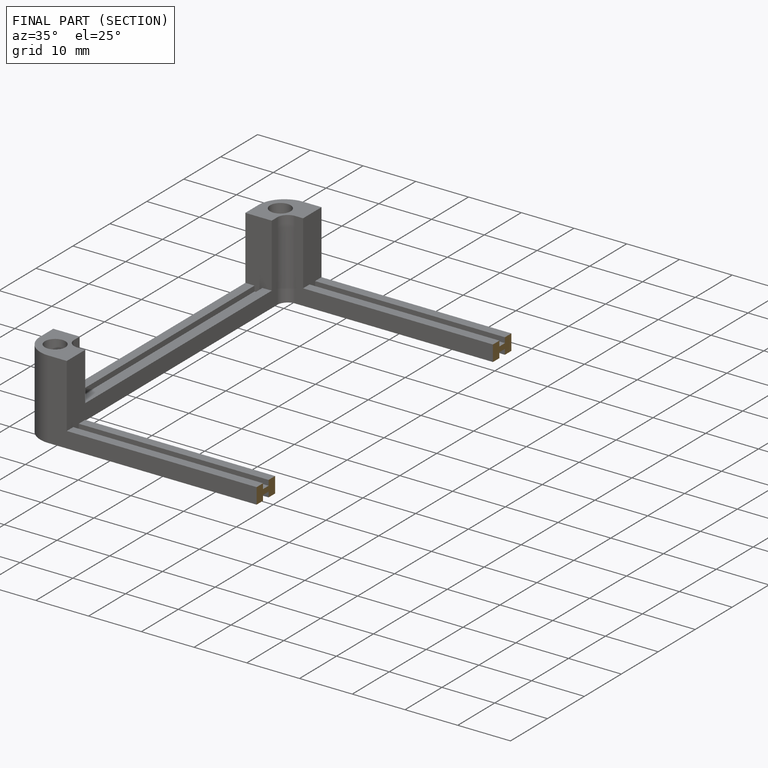
[diagram: finished part — half-section view (interior)]
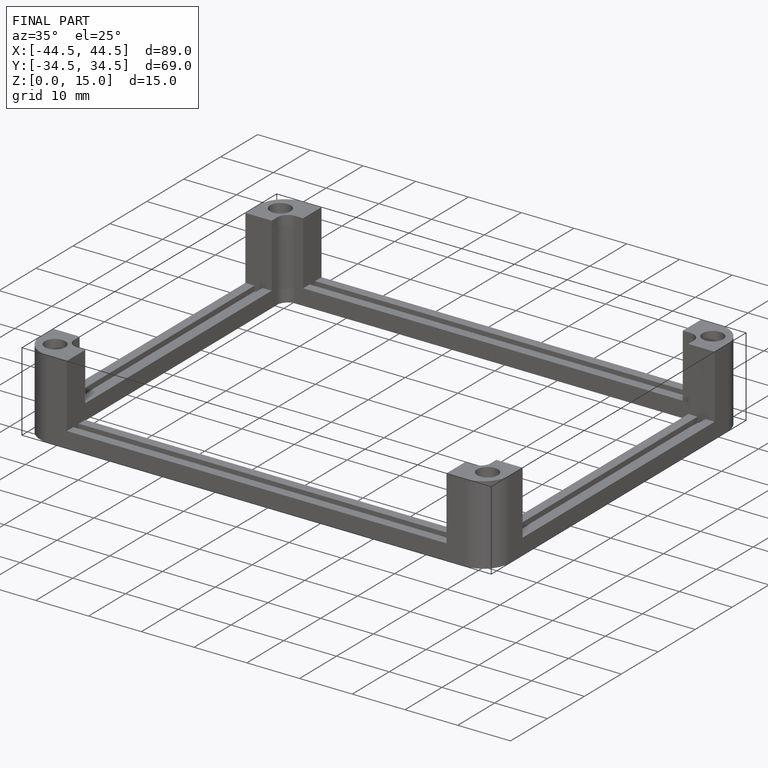
[diagram: finished part — iso view with bounding-box wireframe]
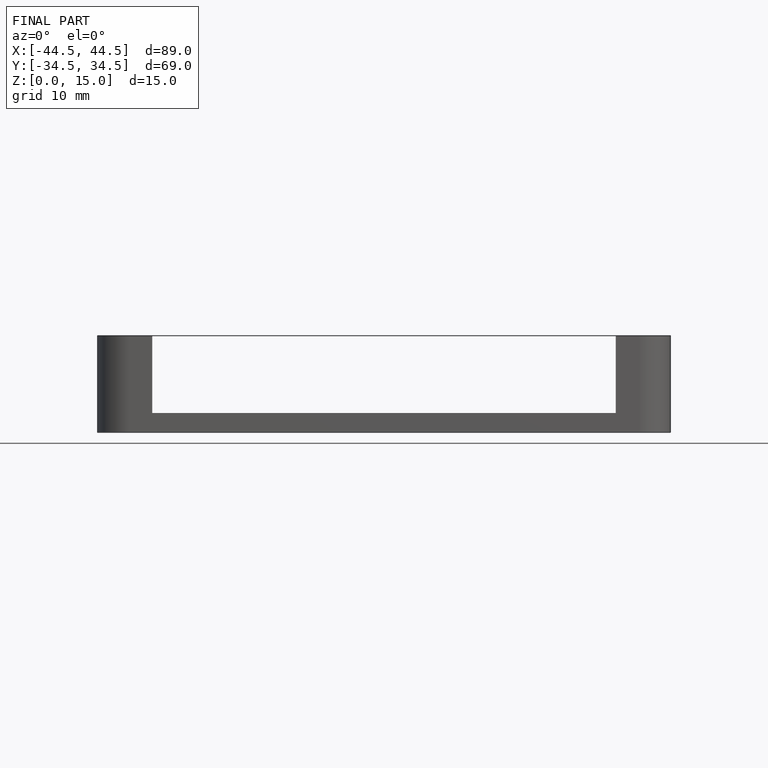
[diagram: finished part — front view with bounding-box wireframe]
